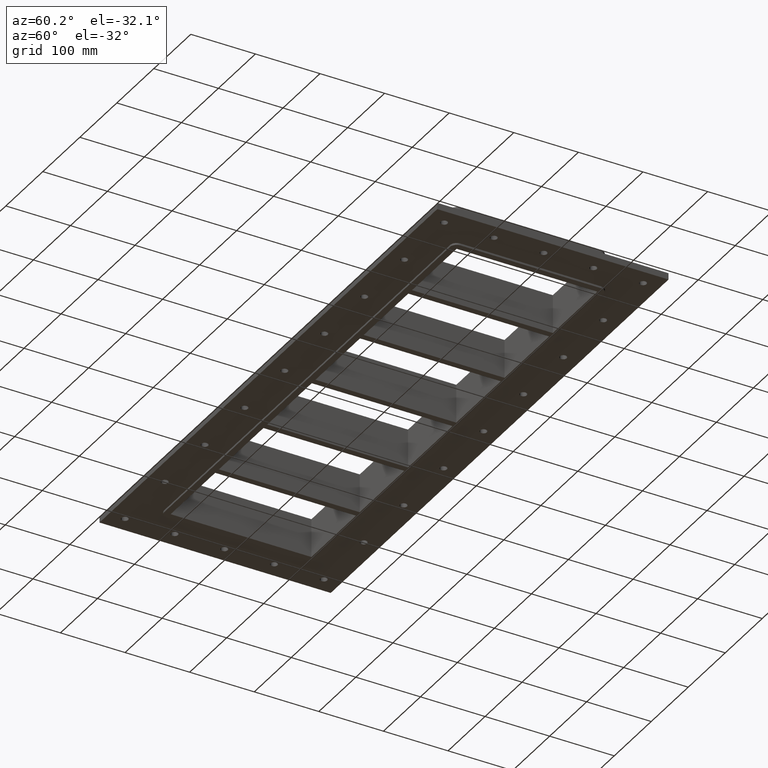
[diagram: clean part render]
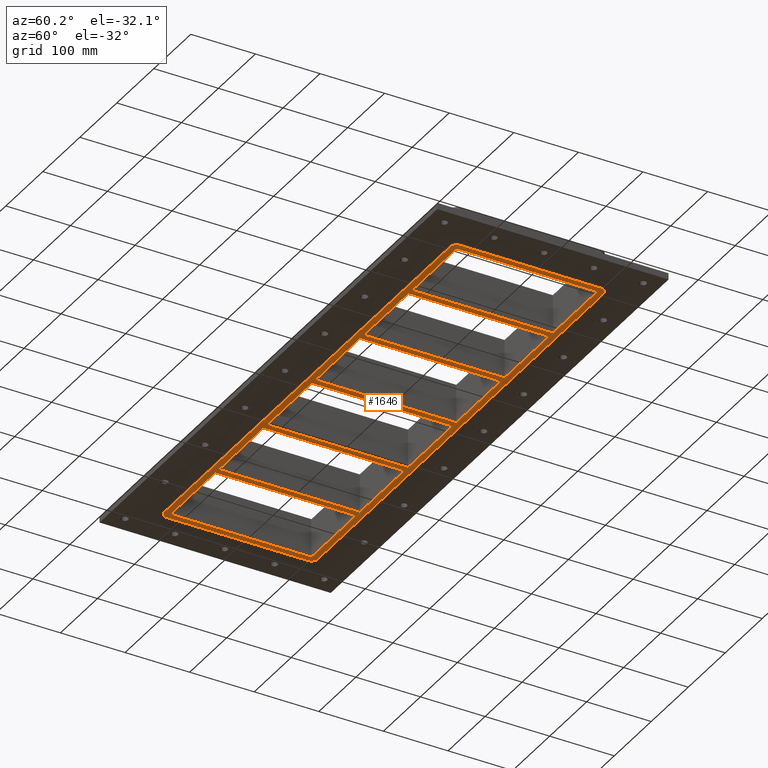
[diagram: same view with one face highlighted and labeled with its STEP entity id]
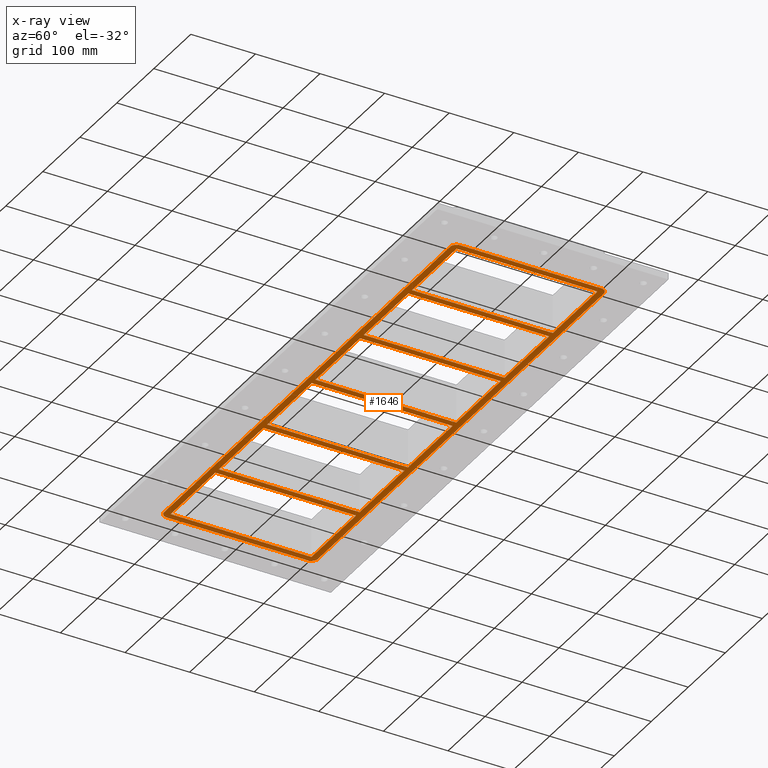
[diagram: x-ray of the same camera — body ghosted, the highlighted face saturated]
A machine part, auxiliary view. The second image highlights one B-rep face of the part: STEP entity #1646.
The next image is the same camera in x-ray: the body ghosted, the highlighted face saturated — about 0% of this face is hidden behind the body in this view.
In plain terms, the highlighted planar face has unit normal (0, 0, 1).
Its self-contained STEP definition (entity closure, byte-faithful):
#1178=CARTESIAN_POINT('',(386.5,-119.0,-30.0));
#1179=VERTEX_POINT('',#1178);
#1186=CARTESIAN_POINT('',(396.50000000000006,-108.99999999999999,-30.0));
#1187=VERTEX_POINT('',#1186);
#1188=CARTESIAN_POINT('',(386.50000000000006,-108.99999999999999,-30.0));
#1189=DIRECTION('',(0.0,0.0,1.0));
#1190=DIRECTION('',(0.707106781186547,-0.707106781186547,0.0));
#1191=AXIS2_PLACEMENT_3D('',#1188,#1189,#1190);
#1192=CIRCLE('',#1191,9.999999999999998);
#1193=EDGE_CURVE('',#1179,#1187,#1192,.T.);
#1242=CARTESIAN_POINT('',(-386.50000000000011,-118.99999999999999,-30.0));
#1243=VERTEX_POINT('',#1242);
#1250=CARTESIAN_POINT('',(386.5,-119.0,-30.0));
#1251=DIRECTION('',(-1.0,0.0,0.0));
#1252=VECTOR('',#1251,773.00000000000011);
#1253=LINE('',#1250,#1252);
#1254=EDGE_CURVE('',#1179,#1243,#1253,.T.);
#1290=CARTESIAN_POINT('',(-396.50000000000011,-108.99999999999997,-30.0));
#1291=VERTEX_POINT('',#1290);
#1298=CARTESIAN_POINT('',(-386.50000000000011,-108.99999999999999,-30.0));
#1299=DIRECTION('',(0.0,0.0,1.0));
#1300=DIRECTION('',(-0.707106781186547,-0.707106781186547,0.0));
#1301=AXIS2_PLACEMENT_3D('',#1298,#1299,#1300);
#1302=CIRCLE('',#1301,9.999999999999998);
#1303=EDGE_CURVE('',#1291,#1243,#1302,.T.);
#1340=CARTESIAN_POINT('',(-396.50000000000011,109.00000000000006,-30.0));
#1341=VERTEX_POINT('',#1340);
#1348=CARTESIAN_POINT('',(-396.50000000000011,-108.99999999999999,-30.0));
#1349=DIRECTION('',(0.0,1.0,0.0));
#1350=VECTOR('',#1349,218.00000000000006);
#1351=LINE('',#1348,#1350);
#1352=EDGE_CURVE('',#1291,#1341,#1351,.T.);
#1388=CARTESIAN_POINT('',(-386.50000000000011,119.00000000000007,-30.0));
#1389=VERTEX_POINT('',#1388);
#1396=CARTESIAN_POINT('',(-386.50000000000011,109.00000000000006,-30.0));
#1397=DIRECTION('',(0.0,0.0,1.0));
#1398=DIRECTION('',(-0.707106781186547,0.707106781186547,0.0));
#1399=AXIS2_PLACEMENT_3D('',#1396,#1397,#1398);
#1400=CIRCLE('',#1399,9.999999999999998);
#1401=EDGE_CURVE('',#1389,#1341,#1400,.T.);
#1407=CARTESIAN_POINT('',(-7.443125E-014,2.269119E-014,-30.0));
#1408=DIRECTION('',(0.0,0.0,1.0));
#1409=DIRECTION('',(1.0,0.0,0.0));
#1410=AXIS2_PLACEMENT_3D('',#1407,#1408,#1409);
#1411=PLANE('',#1410);
#1412=ORIENTED_EDGE('',*,*,#1193,.F.);
#1413=ORIENTED_EDGE('',*,*,#1254,.T.);
#1414=ORIENTED_EDGE('',*,*,#1303,.F.);
#1415=ORIENTED_EDGE('',*,*,#1352,.T.);
#1416=ORIENTED_EDGE('',*,*,#1401,.F.);
#1417=CARTESIAN_POINT('',(386.50000000000006,118.99999999999999,-30.0));
#1418=VERTEX_POINT('',#1417);
#1419=CARTESIAN_POINT('',(-386.50000000000011,119.00000000000007,-30.0));
#1420=DIRECTION('',(1.0,0.0,0.0));
#1421=VECTOR('',#1420,773.00000000000023);
#1422=LINE('',#1419,#1421);
#1423=EDGE_CURVE('',#1389,#1418,#1422,.T.);
#1424=ORIENTED_EDGE('',*,*,#1423,.T.);
#1425=CARTESIAN_POINT('',(396.5,108.99999999999997,-30.0));
#1426=VERTEX_POINT('',#1425);
#1427=CARTESIAN_POINT('',(386.50000000000006,108.99999999999999,-30.0));
#1428=DIRECTION('',(0.0,0.0,1.0));
#1429=DIRECTION('',(0.707106781186547,0.707106781186547,0.0));
#1430=AXIS2_PLACEMENT_3D('',#1427,#1428,#1429);
#1431=CIRCLE('',#1430,9.999999999999998);
#1432=EDGE_CURVE('',#1426,#1418,#1431,.T.);
#1433=ORIENTED_EDGE('',*,*,#1432,.F.);
#1434=CARTESIAN_POINT('',(396.5,108.99999999999997,-30.0));
#1435=DIRECTION('',(0.0,-1.0,0.0));
#1436=VECTOR('',#1435,217.99999999999994);
#1437=LINE('',#1434,#1436);
#1438=EDGE_CURVE('',#1426,#1187,#1437,.T.);
#1439=ORIENTED_EDGE('',*,*,#1438,.T.);
#1440=EDGE_LOOP('',(#1412,#1413,#1414,#1415,#1416,#1424,#1433,#1439));
#1441=FACE_OUTER_BOUND('',#1440,.T.);
#1442=CARTESIAN_POINT('',(265.99999999999989,108.99999999999947,-30.0));
#1443=VERTEX_POINT('',#1442);
#1444=CARTESIAN_POINT('',(266.0,-109.00000000000036,-30.0));
#1445=VERTEX_POINT('',#1444);
#1446=CARTESIAN_POINT('',(265.99999999999989,108.99999999999947,-30.0));
#1447=DIRECTION('',(0.0,-1.0,0.0));
#1448=VECTOR('',#1447,217.99999999999983);
#1449=LINE('',#1446,#1448);
#1450=EDGE_CURVE('',#1443,#1445,#1449,.T.);
#1451=ORIENTED_EDGE('',*,*,#1450,.T.);
#1452=CARTESIAN_POINT('',(386.5,-109.00000000000054,-30.0));
#1453=VERTEX_POINT('',#1452);
#1454=CARTESIAN_POINT('',(266.0,-109.00000000000037,-30.0));
#1455=DIRECTION('',(1.0,0.0,0.0));
#1456=VECTOR('',#1455,120.5);
#1457=LINE('',#1454,#1456);
#1458=EDGE_CURVE('',#1445,#1453,#1457,.T.);
#1459=ORIENTED_EDGE('',*,*,#1458,.T.);
#1460=CARTESIAN_POINT('',(386.49999999999989,108.99999999999947,-30.0));
#1461=VERTEX_POINT('',#1460);
#1462=CARTESIAN_POINT('',(386.49999999999989,-109.00000000000051,-30.0));
#1463=DIRECTION('',(0.0,1.0,0.0));
#1464=VECTOR('',#1463,217.99999999999997);
#1465=LINE('',#1462,#1464);
#1466=EDGE_CURVE('',#1453,#1461,#1465,.T.);
#1467=ORIENTED_EDGE('',*,*,#1466,.T.);
#1468=CARTESIAN_POINT('',(386.49999999999989,108.99999999999947,-30.0));
#1469=DIRECTION('',(-1.0,0.0,0.0));
#1470=VECTOR('',#1469,120.5);
#1471=LINE('',#1468,#1470);
#1472=EDGE_CURVE('',#1461,#1443,#1471,.T.);
#1473=ORIENTED_EDGE('',*,*,#1472,.T.);
#1474=EDGE_LOOP('',(#1451,#1459,#1467,#1473));
#1475=FACE_BOUND('',#1474,.T.);
#1476=CARTESIAN_POINT('',(135.49999999999994,108.99999999999949,-30.0));
#1477=VERTEX_POINT('',#1476);
#1478=CARTESIAN_POINT('',(135.5,-109.00000000000034,-30.0));
#1479=VERTEX_POINT('',#1478);
#1480=CARTESIAN_POINT('',(135.49999999999994,108.99999999999949,-30.0));
#1481=DIRECTION('',(0.0,-1.0,0.0));
#1482=VECTOR('',#1481,217.99999999999983);
#1483=LINE('',#1480,#1482);
#1484=EDGE_CURVE('',#1477,#1479,#1483,.T.);
#1485=ORIENTED_EDGE('',*,*,#1484,.T.);
#1486=CARTESIAN_POINT('',(256.0,-109.00000000000051,-30.0));
#1487=VERTEX_POINT('',#1486);
#1488=CARTESIAN_POINT('',(135.5,-109.00000000000036,-30.0));
#1489=DIRECTION('',(1.0,0.0,0.0));
#1490=VECTOR('',#1489,120.5);
#1491=LINE('',#1488,#1490);
#1492=EDGE_CURVE('',#1479,#1487,#1491,.T.);
#1493=ORIENTED_EDGE('',*,*,#1492,.T.);
#1494=CARTESIAN_POINT('',(255.99999999999997,108.99999999999949,-30.0));
#1495=VERTEX_POINT('',#1494);
#1496=CARTESIAN_POINT('',(256.0,-109.00000000000051,-30.0));
#1497=DIRECTION('',(0.0,1.0,0.0));
#1498=VECTOR('',#1497,218.0);
#1499=LINE('',#1496,#1498);
#1500=EDGE_CURVE('',#1487,#1495,#1499,.T.);
#1501=ORIENTED_EDGE('',*,*,#1500,.T.);
#1502=CARTESIAN_POINT('',(255.99999999999994,108.99999999999949,-30.0));
#1503=DIRECTION('',(-1.0,0.0,0.0));
#1504=VECTOR('',#1503,120.5);
#1505=LINE('',#1502,#1504);
#1506=EDGE_CURVE('',#1495,#1477,#1505,.T.);
#1507=ORIENTED_EDGE('',*,*,#1506,.T.);
#1508=EDGE_LOOP('',(#1485,#1493,#1501,#1507));
#1509=FACE_BOUND('',#1508,.T.);
#1510=CARTESIAN_POINT('',(4.999999999999929,108.99999999999949,-30.0));
#1511=VERTEX_POINT('',#1510);
#1512=CARTESIAN_POINT('',(5.0,-109.00000000000034,-30.0));
#1513=VERTEX_POINT('',#1512);
#1514=CARTESIAN_POINT('',(4.999999999999929,108.99999999999949,-30.0));
#1515=DIRECTION('',(0.0,-1.0,0.0));
#1516=VECTOR('',#1515,217.99999999999983);
#1517=LINE('',#1514,#1516);
#1518=EDGE_CURVE('',#1511,#1513,#1517,.T.);
#1519=ORIENTED_EDGE('',*,*,#1518,.T.);
#1520=CARTESIAN_POINT('',(125.5,-109.00000000000051,-30.0));
#1521=VERTEX_POINT('',#1520);
#1522=CARTESIAN_POINT('',(5.0,-109.00000000000034,-30.0));
#1523=DIRECTION('',(1.0,0.0,0.0));
#1524=VECTOR('',#1523,120.5);
#1525=LINE('',#1522,#1524);
#1526=EDGE_CURVE('',#1513,#1521,#1525,.T.);
#1527=ORIENTED_EDGE('',*,*,#1526,.T.);
#1528=CARTESIAN_POINT('',(125.49999999999997,108.99999999999949,-30.0));
#1529=VERTEX_POINT('',#1528);
#1530=CARTESIAN_POINT('',(125.5,-109.00000000000053,-30.0));
#1531=DIRECTION('',(0.0,1.0,0.0));
#1532=VECTOR('',#1531,218.0);
#1533=LINE('',#1530,#1532);
#1534=EDGE_CURVE('',#1521,#1529,#1533,.T.);
#1535=ORIENTED_EDGE('',*,*,#1534,.T.);
#1536=CARTESIAN_POINT('',(125.49999999999997,108.99999999999949,-30.0));
#1537=DIRECTION('',(-1.0,0.0,0.0));
#1538=VECTOR('',#1537,120.50000000000004);
#1539=LINE('',#1536,#1538);
#1540=EDGE_CURVE('',#1529,#1511,#1539,.T.);
#1541=ORIENTED_EDGE('',*,*,#1540,.T.);
#1542=EDGE_LOOP('',(#1519,#1527,#1535,#1541));
#1543=FACE_BOUND('',#1542,.T.);
#1544=CARTESIAN_POINT('',(-125.50000000000011,108.99999999999949,-30.0));
#1545=VERTEX_POINT('',#1544);
#1546=CARTESIAN_POINT('',(-125.50000000000004,-109.00000000000034,-30.0));
#1547=VERTEX_POINT('',#1546);
#1548=CARTESIAN_POINT('',(-125.50000000000011,108.99999999999949,-30.0));
#1549=DIRECTION('',(0.0,-1.0,0.0));
#1550=VECTOR('',#1549,217.99999999999983);
#1551=LINE('',#1548,#1550);
#1552=EDGE_CURVE('',#1545,#1547,#1551,.T.);
#1553=ORIENTED_EDGE('',*,*,#1552,.T.);
#1554=CARTESIAN_POINT('',(-5.000000000000036,-109.00000000000051,-30.0));
#1555=VERTEX_POINT('',#1554);
#1556=CARTESIAN_POINT('',(-125.50000000000004,-109.00000000000033,-30.0));
#1557=DIRECTION('',(1.0,0.0,0.0));
#1558=VECTOR('',#1557,120.5);
#1559=LINE('',#1556,#1558);
#1560=EDGE_CURVE('',#1547,#1555,#1559,.T.);
#1561=ORIENTED_EDGE('',*,*,#1560,.T.);
#1562=CARTESIAN_POINT('',(-5.000000000000071,108.99999999999949,-30.0));
#1563=VERTEX_POINT('',#1562);
#1564=CARTESIAN_POINT('',(-5.000000000000036,-109.00000000000051,-30.0));
#1565=DIRECTION('',(0.0,1.0,0.0));
#1566=VECTOR('',#1565,218.0);
#1567=LINE('',#1564,#1566);
#1568=EDGE_CURVE('',#1555,#1563,#1567,.T.);
#1569=ORIENTED_EDGE('',*,*,#1568,.T.);
#1570=CARTESIAN_POINT('',(-5.000000000000071,108.99999999999949,-30.0));
#1571=DIRECTION('',(-1.0,0.0,0.0));
#1572=VECTOR('',#1571,120.50000000000004);
#1573=LINE('',#1570,#1572);
#1574=EDGE_CURVE('',#1563,#1545,#1573,.T.);
#1575=ORIENTED_EDGE('',*,*,#1574,.T.);
#1576=EDGE_LOOP('',(#1553,#1561,#1569,#1575));
#1577=FACE_BOUND('',#1576,.T.);
#1578=CARTESIAN_POINT('',(-256.00000000000011,108.99999999999949,-30.0));
#1579=VERTEX_POINT('',#1578);
#1580=CARTESIAN_POINT('',(-256.00000000000006,-109.00000000000034,-30.0));
#1581=VERTEX_POINT('',#1580);
#1582=CARTESIAN_POINT('',(-256.00000000000017,108.99999999999949,-30.0));
#1583=DIRECTION('',(0.0,-1.0,0.0));
#1584=VECTOR('',#1583,217.99999999999983);
#1585=LINE('',#1582,#1584);
#1586=EDGE_CURVE('',#1579,#1581,#1585,.T.);
#1587=ORIENTED_EDGE('',*,*,#1586,.T.);
#1588=CARTESIAN_POINT('',(-135.50000000000006,-109.00000000000051,-30.0));
#1589=VERTEX_POINT('',#1588);
#1590=CARTESIAN_POINT('',(-256.00000000000006,-109.00000000000034,-30.0));
#1591=DIRECTION('',(1.0,0.0,0.0));
#1592=VECTOR('',#1591,120.5);
#1593=LINE('',#1590,#1592);
#1594=EDGE_CURVE('',#1581,#1589,#1593,.T.);
#1595=ORIENTED_EDGE('',*,*,#1594,.T.);
#1596=CARTESIAN_POINT('',(-135.50000000000009,108.99999999999949,-30.0));
#1597=VERTEX_POINT('',#1596);
#1598=CARTESIAN_POINT('',(-135.50000000000006,-109.00000000000051,-30.0));
#1599=DIRECTION('',(0.0,1.0,0.0));
#1600=VECTOR('',#1599,218.0);
#1601=LINE('',#1598,#1600);
#1602=EDGE_CURVE('',#1589,#1597,#1601,.T.);
#1603=ORIENTED_EDGE('',*,*,#1602,.T.);
#1604=CARTESIAN_POINT('',(-135.50000000000006,108.99999999999949,-30.0));
#1605=DIRECTION('',(-1.0,0.0,0.0));
#1606=VECTOR('',#1605,120.50000000000006);
#1607=LINE('',#1604,#1606);
#1608=EDGE_CURVE('',#1597,#1579,#1607,.T.);
#1609=ORIENTED_EDGE('',*,*,#1608,.T.);
#1610=EDGE_LOOP('',(#1587,#1595,#1603,#1609));
#1611=FACE_BOUND('',#1610,.T.);
#1612=CARTESIAN_POINT('',(-266.00000000000006,-109.00000000000051,-30.0));
#1613=VERTEX_POINT('',#1612);
#1614=CARTESIAN_POINT('',(-266.00000000000011,108.99999999999949,-30.0));
#1615=VERTEX_POINT('',#1614);
#1616=CARTESIAN_POINT('',(-266.00000000000011,-109.00000000000051,-30.0));
#1617=DIRECTION('',(0.0,1.0,0.0));
#1618=VECTOR('',#1617,218.0);
#1619=LINE('',#1616,#1618);
#1620=EDGE_CURVE('',#1613,#1615,#1619,.T.);
#1621=ORIENTED_EDGE('',*,*,#1620,.T.);
#1622=CARTESIAN_POINT('',(-386.50000000000011,108.99999999999949,-30.0));
#1623=VERTEX_POINT('',#1622);
#1624=CARTESIAN_POINT('',(-266.00000000000011,108.99999999999949,-30.0));
#1625=DIRECTION('',(-1.0,0.0,0.0));
#1626=VECTOR('',#1625,120.5);
#1627=LINE('',#1624,#1626);
#1628=EDGE_CURVE('',#1615,#1623,#1627,.T.);
#1629=ORIENTED_EDGE('',*,*,#1628,.T.);
#1630=CARTESIAN_POINT('',(-386.50000000000006,-109.00000000000034,-30.0));
#1631=VERTEX_POINT('',#1630);
#1632=CARTESIAN_POINT('',(-386.50000000000011,108.99999999999949,-30.0));
#1633=DIRECTION('',(0.0,-1.0,0.0));
#1634=VECTOR('',#1633,217.99999999999983);
#1635=LINE('',#1632,#1634);
#1636=EDGE_CURVE('',#1623,#1631,#1635,.T.);
#1637=ORIENTED_EDGE('',*,*,#1636,.T.);
#1638=CARTESIAN_POINT('',(-386.50000000000006,-109.00000000000034,-30.0));
#1639=DIRECTION('',(1.0,0.0,0.0));
#1640=VECTOR('',#1639,120.50000000000006);
#1641=LINE('',#1638,#1640);
#1642=EDGE_CURVE('',#1631,#1613,#1641,.T.);
#1643=ORIENTED_EDGE('',*,*,#1642,.T.);
#1644=EDGE_LOOP('',(#1621,#1629,#1637,#1643));
#1645=FACE_BOUND('',#1644,.T.);
#1646=ADVANCED_FACE('',(#1441,#1475,#1509,#1543,#1577,#1611,#1645),#1411,.F.);